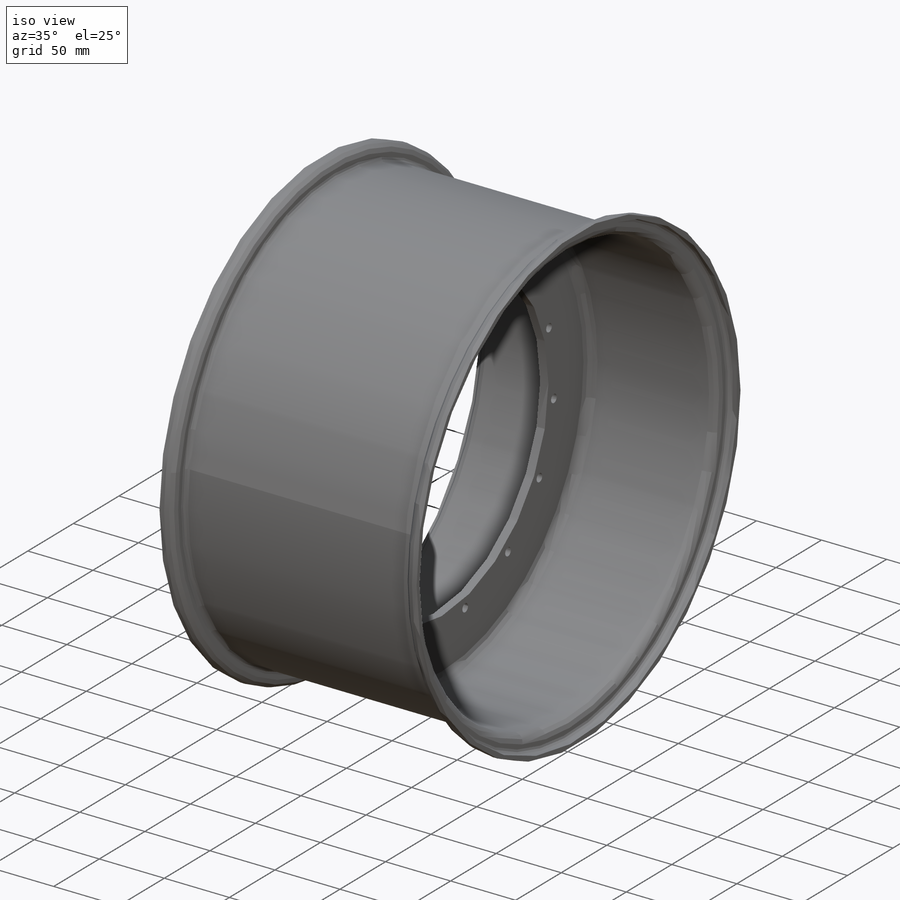
[diagram: iso view]
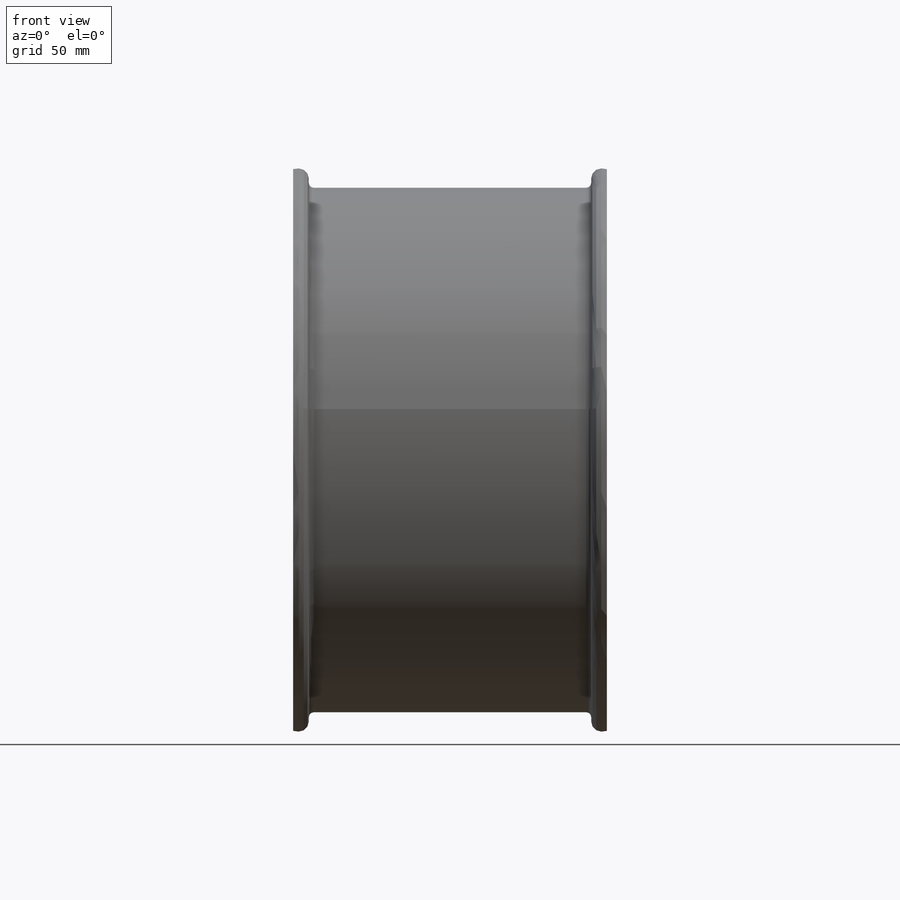
[diagram: front view]
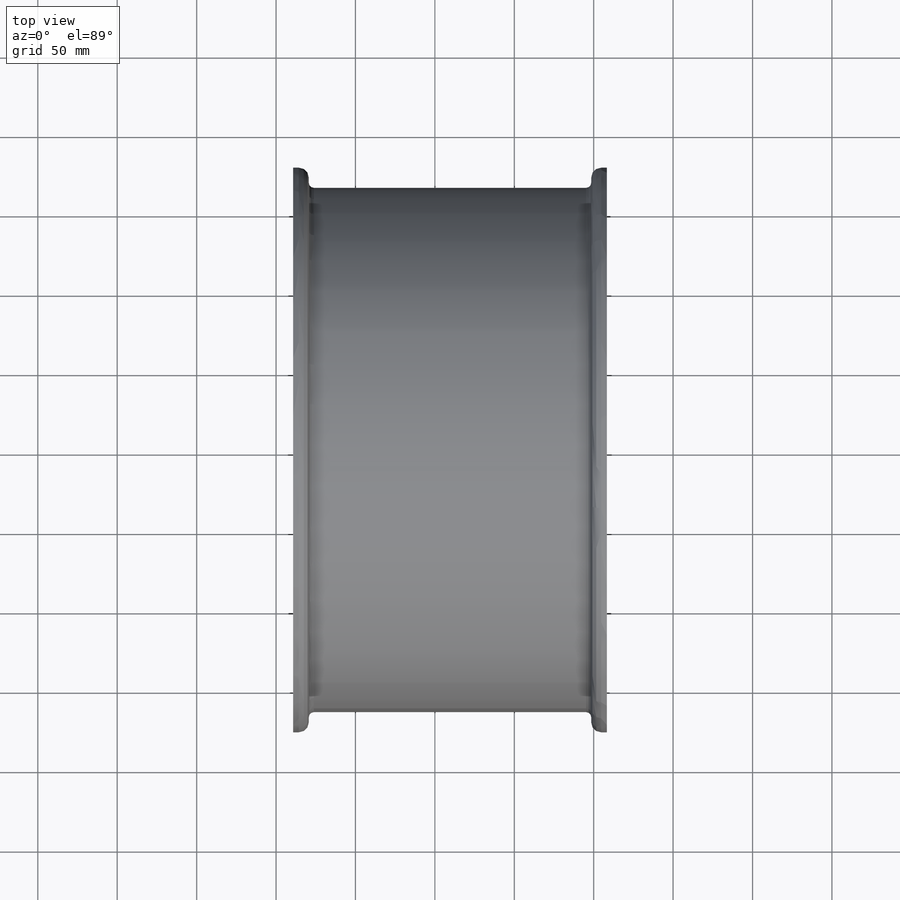
[diagram: top view]
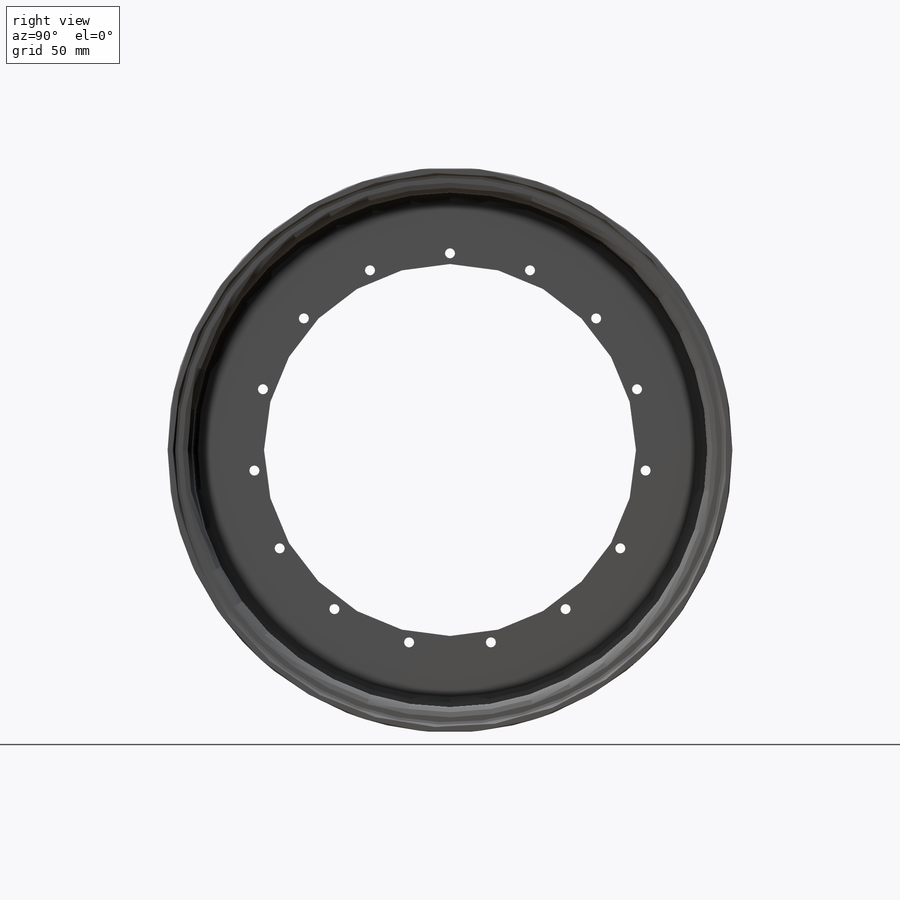
[diagram: right view]
SOLIDWORKS PART (.sldprt)
format: sldprt  version: not decoded by parser v0  size: 560,640 bytes
history: native  units: mm
features: sketch x3, material x1, revolve x1, cut_extrude x1, pattern_circular x1, fillet x1, plane x1 (+11 scaffold rows collapsed)
feature tree (20):
  scaffold x11  (default folders/planes/origin — collapsed)
  material  "7075-T6 (SN)"
  sketch  "Sketch1"  dims[c1.D1=3.175mm c1.D3=3.175mm c1.D12=6.35mm c1.D13=6.35mm c1.D2=177.8mm c1.D4=9.906mm c1.D5=9.906mm c1.D6=12.7mm c1.D7=3.175mm c1.D8=6.35mm c1.D9=160.909mm c1.D10=117.094mm c1.D11=330.2mm c2.D9=25.4mm c2.D1=3.175mm c2.D13=2.54mm c2.D14=3.175mm c2.D15=3.175mm]
  revolve  "Revolve1"  Angle=360deg
  sketch  "3DSketch1"
  sketch  "Sketch2"  dims[D1=6.35mm D2=123.825mm]
  cut_extrude  "Cut-Extrude1"  [1 undecoded]
  pattern_circular  "CirPattern1"  Count=15 Angle=360deg
  fillet  "Fillet1"  Radius=6.35mm
  plane  "Mid Plane"
decode coverage: 5 of 7 modeling features carry decoded parameters
note: 1 parameter value undecoded
note: suppression state not decoded; provenance and decode notes live in map.json
